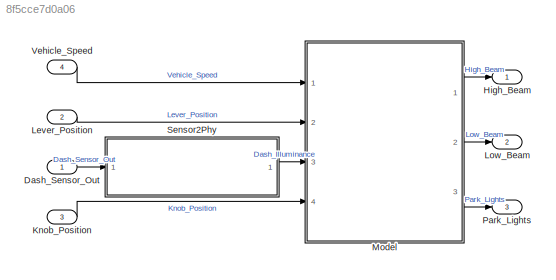
MODEL slx_8f5cce7d0a06
KIND model
CONFIG AbsTol = auto
CONFIG EnableMultiTasking = off
CONFIG FixedStep = auto
CONFIG MaxStep = auto
CONFIG MinStep = auto
CONFIG RelTol = 1e-3
CONFIG SampleTimeConstraint = Unconstrained
CONFIG Solver = VariableStepAuto
CONFIG SolverName = VariableStepAuto
CONFIG StartTime = 0.0
CONFIG StopTime = 10.0
BLOCK [Inport] Dash_Sensor_Out
  IconDisplay = Port number
BLOCK [Outport] High_Beam
  IconDisplay = Port number
BLOCK [Inport] Knob_Position
  IconDisplay = Port number
  Port = 3
BLOCK [Inport] Lever_Position
  IconDisplay = Port number
  Port = 2
BLOCK [Outport] Low_Beam
  IconDisplay = Port number
  Port = 2
BLOCK [ModelReference] Model
  ModelNameDialog = iControlLogic.slx
  ModelReferenceVersion = 1.4
  Ports = [4, 3]
  Variant = off
BLOCK [Outport] Park_Lights
  IconDisplay = Port number
  Port = 3
BLOCK [ModelReference] Sensor2Phy
  ModelNameDialog = iSensor2Phy.slx
  ModelReferenceVersion = 1.1
  Ports = [1, 1]
  Variant = off
BLOCK [Inport] Vehicle_Speed
  IconDisplay = Port number
  Port = 4
LINE Dash_Sensor_Out:1 -> Sensor2Phy:1
LINE Knob_Position:1 -> Model:4
LINE Lever_Position:1 -> Model:2
LINE Model:1 -> High_Beam:1
LINE Model:2 -> Low_Beam:1
LINE Model:3 -> Park_Lights:1
LINE Sensor2Phy:1 -> Model:3
LINE Vehicle_Speed:1 -> Model:1
